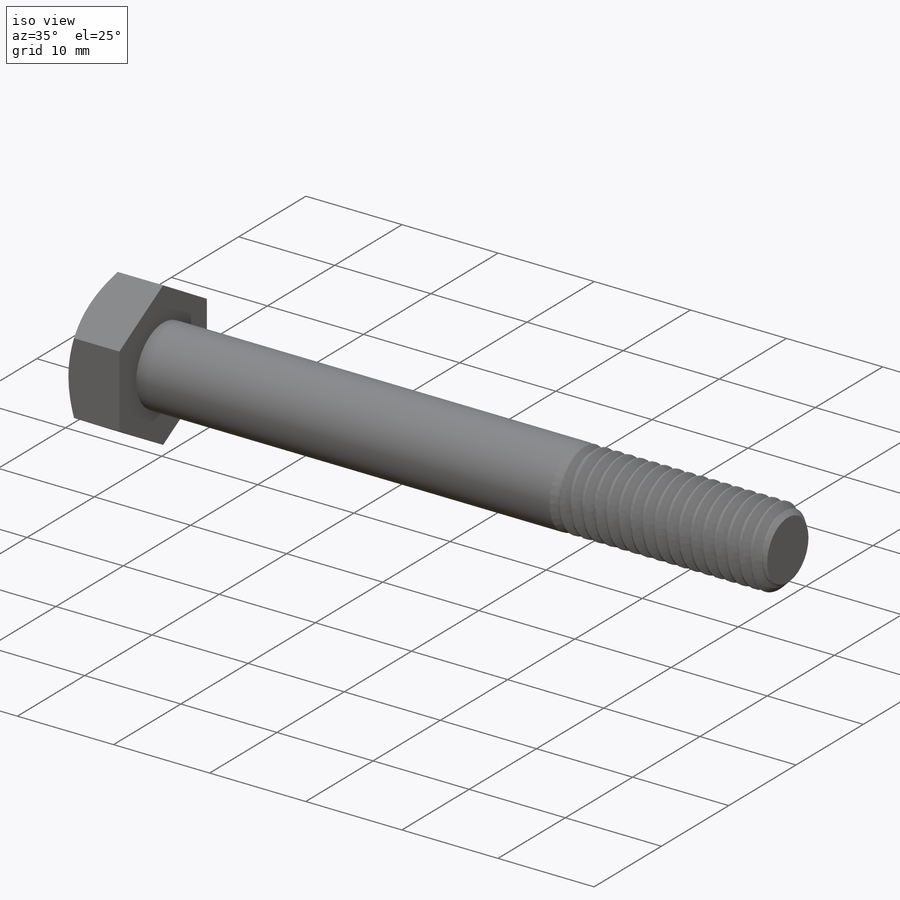
[diagram: iso view]
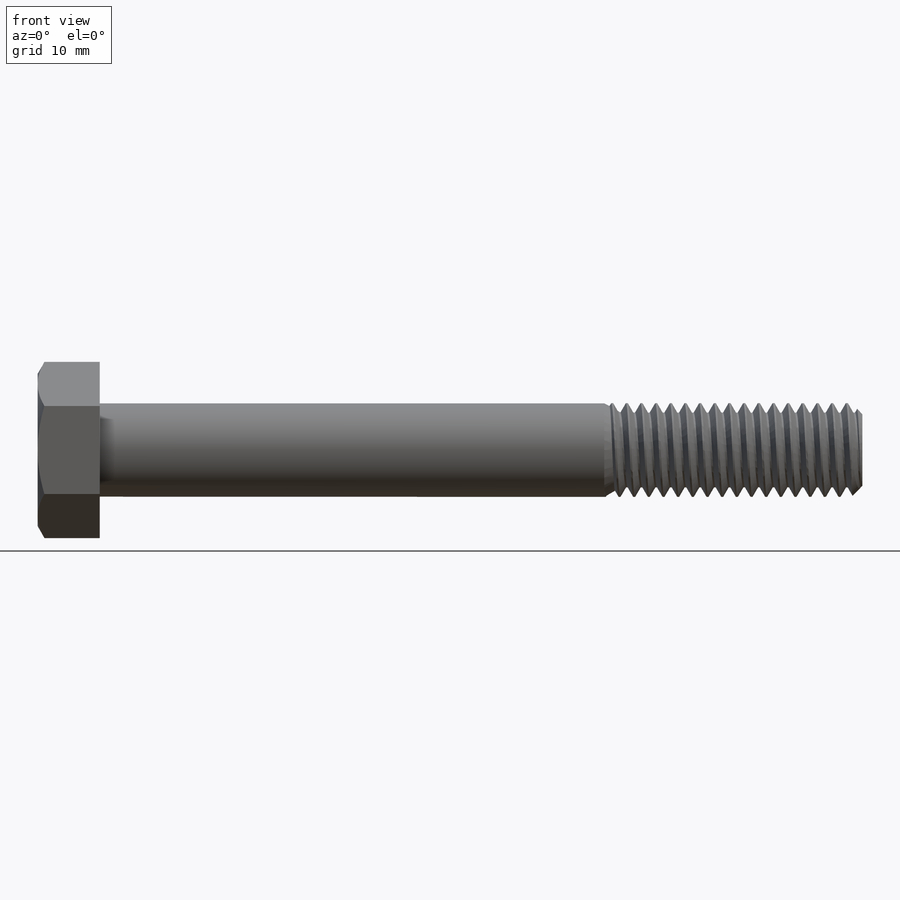
[diagram: front view]
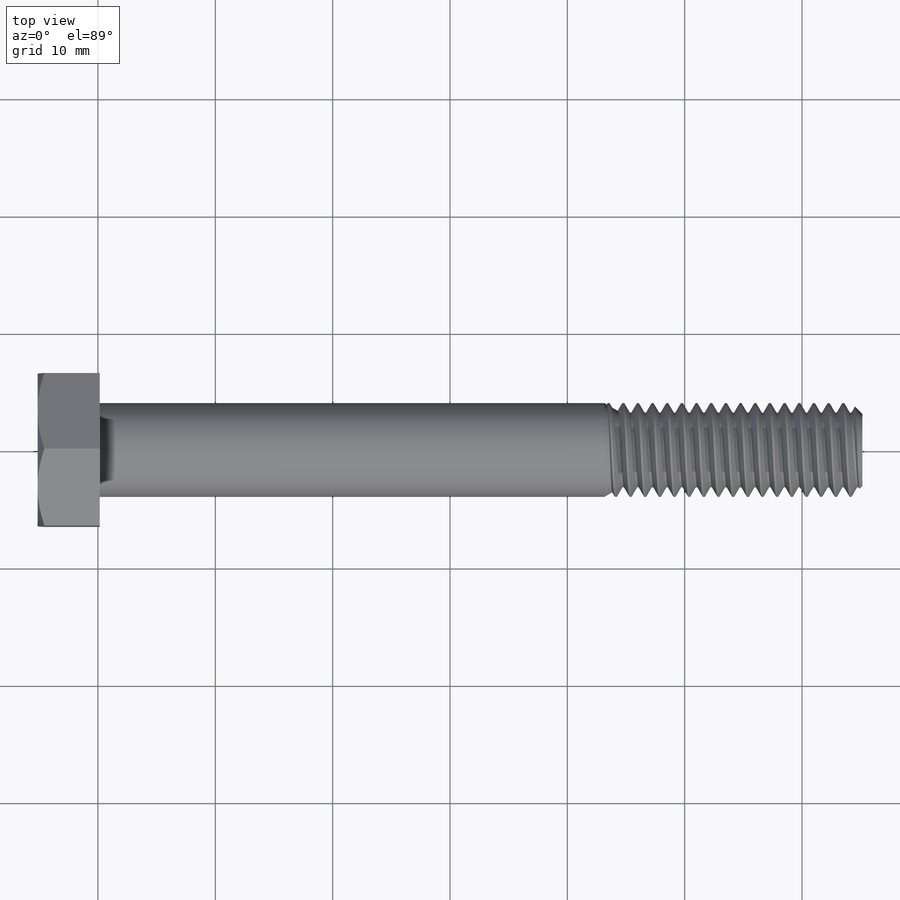
[diagram: top view]
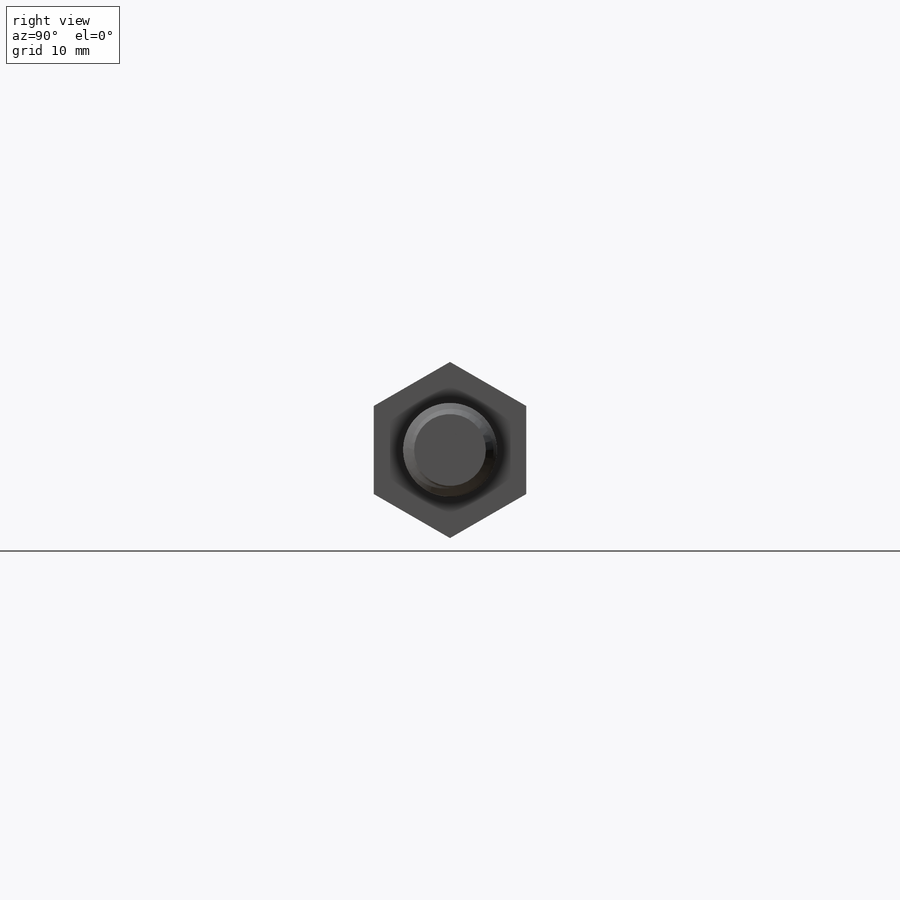
[diagram: right view]
SOLIDWORKS PART (.sldprt)
format: sldprt  version: not decoded by parser v0  size: 931,328 bytes
history: native  units: mm
features: sketch x8, extrude x2, cut_extrude x2, material x1, plane x1, helix x1, chamfer x1, sweep x1, revolve x1, boolean_combine x1 (+15 scaffold rows collapsed; 1 parser-record rows omitted)
feature tree (35):
  scaffold x15  (default folders/planes/origin — collapsed)
  material  "Material <not specified>"
  sketch  "Sketch1"  dims[Thread Dia=8.0mm Hex=13.0mm Head Ht=5.3mm Length=65.0mm D1=4.375mm D2=22.0mm]
  plane  "Plane2"
  sketch  "Sketch2"
  extrude  "Boss-Extrude1"  [1 undecoded]
  sketch  "Sketch4"  dims[D1=0.0mm]
  helix  "Helix/Spiral1"  Pitch=66.25mm
  chamfer  "Chamfer1"  Distance=0.9375mm Angle=45deg
  sketch  "Sketch3"  dims[D1=~167.119757mm D2=~167.119757mm]
  extrude  "Boss-Extrude2"  [1 undecoded]
  sketch  "Sketch6"
  cut_extrude  "Cut-Extrude1"  [1 undecoded]
  sketch  "Sketch7"  dims[D1=~4.152632mm D2=6.5mm D3=6.5mm D4=~2.166667mm D5=~3.462498mm D6=~2.769999mm]
  cut_extrude  "Cut-Extrude2"  Depth=0.5mm
  parser-record x1  (decoder bookkeeping rows leaked as tree rows — omitted from the tree; the rows remain in map.json)
  sketch  "Sketch5"  dims[c1.D1=~4.855043mm c2.D1=60.0deg c2.D2=~0.15625mm c2.D3=0.625mm]
  sweep  "Cut-Sweep1"
  sketch  "Sketch8"  dims[c1.Min Thread=22.0mm c1.D1=13.5mm c2.D1=30.0deg c2.D2=0.01mm]
  revolve  "Min Thread"  Angle=360deg
  boolean_combine  "Combine1"
decode coverage: 10 of 17 modeling features carry decoded parameters
note: ~ marks probable driven/reference dimensions
note: 3 parameter values undecoded
summary: no parameter record found for 3 features
note: suppression state not decoded; provenance and decode notes live in map.json
